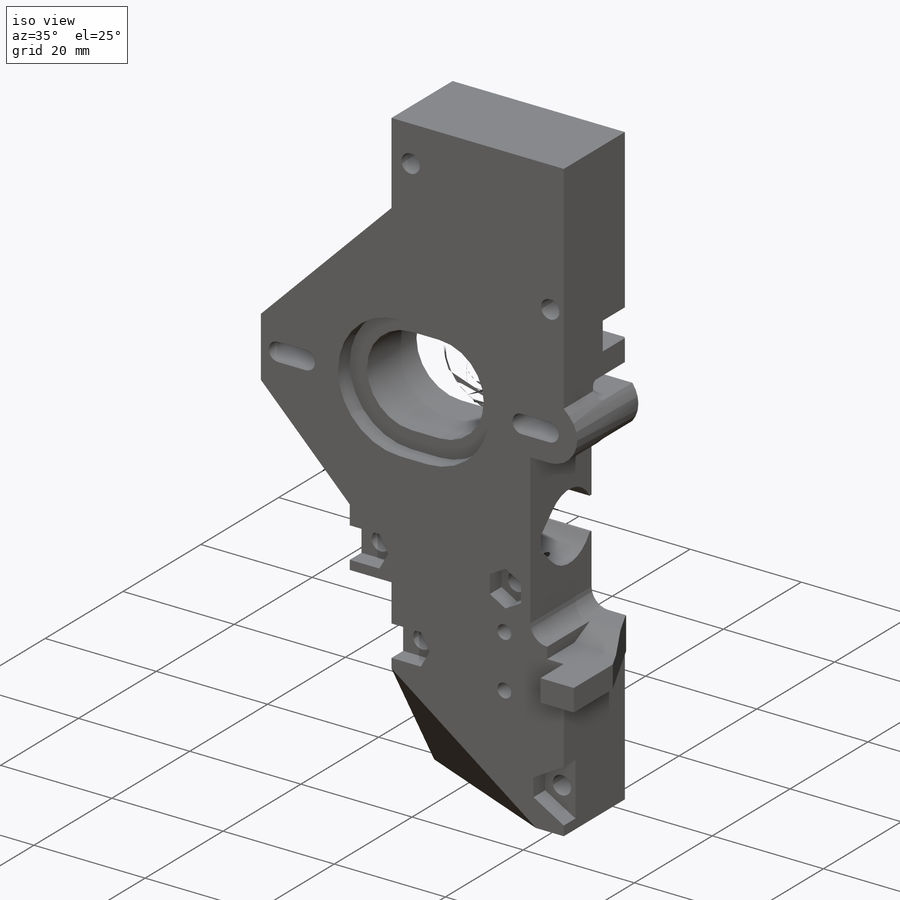
[diagram: iso view]
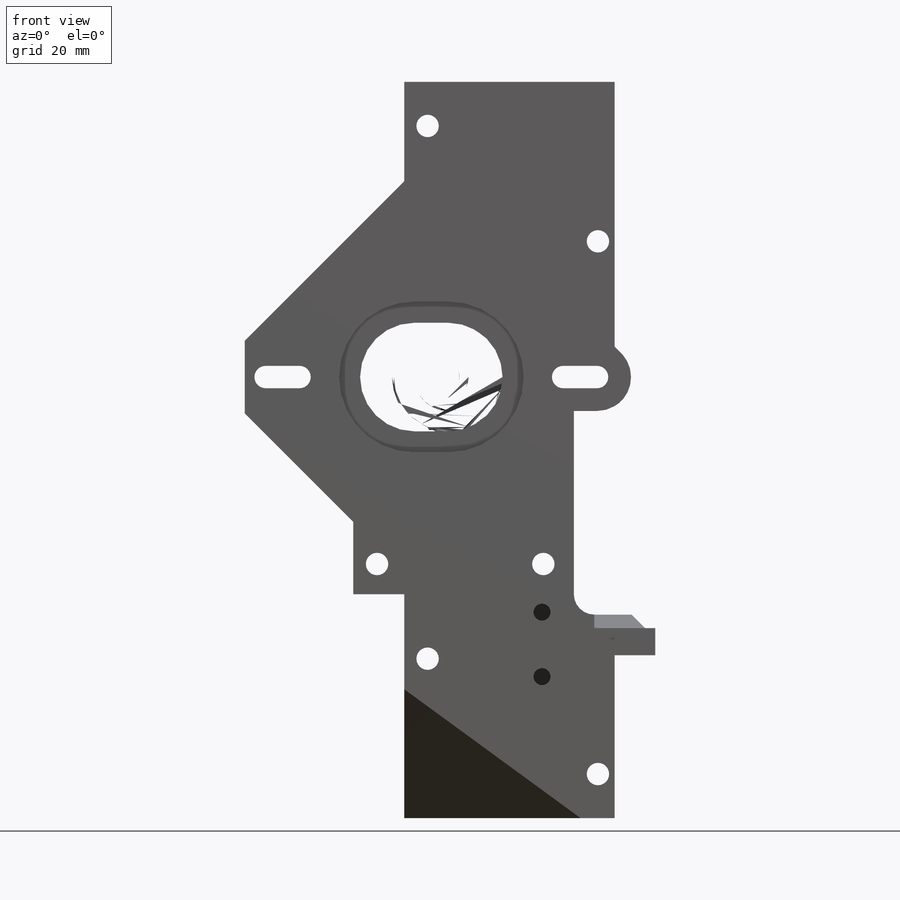
[diagram: front view]
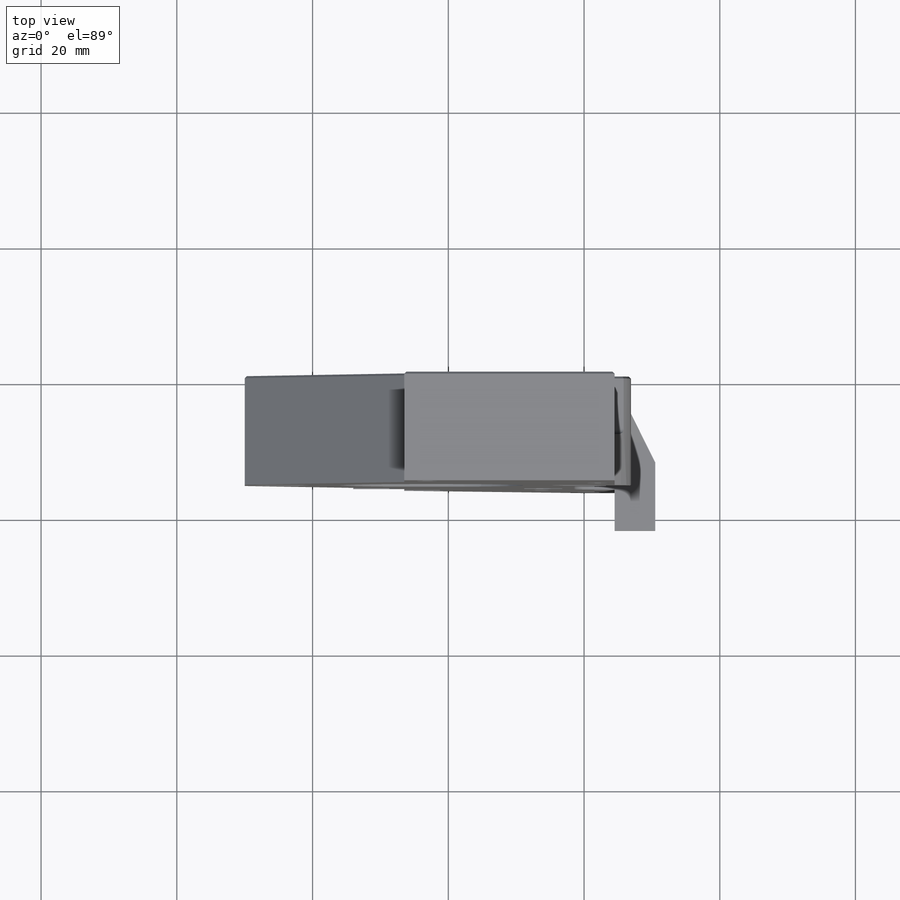
[diagram: top view]
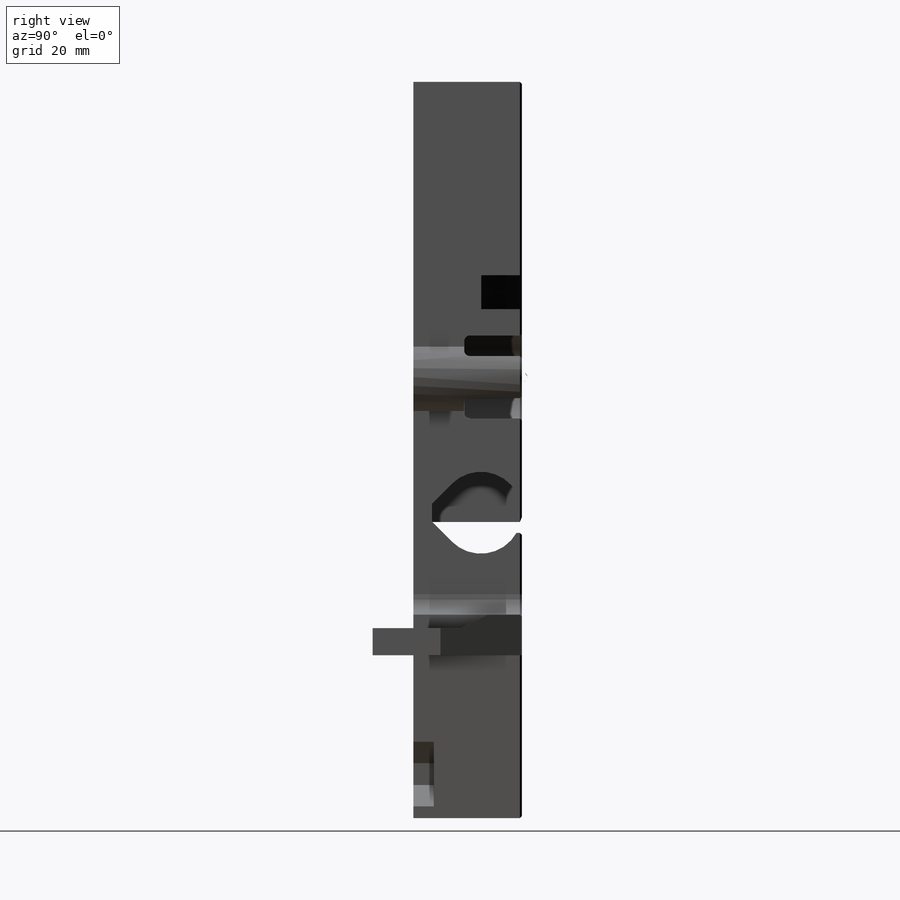
[diagram: right view]
SOLIDWORKS PART (.sldprt)
format: sldprt  version: not decoded by parser v0  size: 901,120 bytes
history: native  units: mm
features: sketch x23, cut_extrude x21, chamfer x6, extrude x2, material x1, plane x1, fillet x1 (+13 scaffold rows collapsed)
feature tree (68):
  scaffold x13  (default folders/planes/origin — collapsed)
  material  "Custom Plastic"
  sketch  "Sketch1"  dims[c1.D1=42.0mm c1.D2=31.0mm c1.D3=3.1mm c1.D4=11.0mm c1.D12=16.0mm c1.D7=10.0mm c1.D17=3.1mm c1.D18=3.1mm c1.D22=3.1mm c1.D29=3.1mm c1.D37=3.3mm c1.D38=3.3mm c1.D39=3.3mm c1.D40=3.3mm c1.D41=3.3mm c1.D42=3.3mm c1.D43=3.3mm c1.D44=3.3mm c2.D4=4.0mm c2.D7=4.0mm c2.D11=4.0mm c2.D17=4.0mm c2.D8=4.0mm c3.D17=4.0mm c3.D9=4.0mm c3.D5=7.5mm c3.D6=12.5mm c3.D10=6.0mm c3.D7=250.0mm c3.D11=10.0mm c3.D13=15.0mm c3.D14=15.0mm c3.D15=1.5mm c4.D13=35.0mm c4.D16=15.0mm c4.D5=16.5mm c4.D6=23.5mm c4.D8=20.0mm c4.D10=21.0mm c4.D11=~34.540694mm c4.D9=29.0mm c5.D11=8.0mm c5.D13=65.0mm c5.D14=43.5mm c5.D10=23.5mm c6.D11=30.0mm c6.D16=9.5mm c6.D17=9.0mm c6.D18=8.0mm c6.D5=9.0mm c6.D6=30.0mm c6.D8=20.0mm c7.D6=31.0mm c7.D9=15.0mm c7.D15=25.0mm c7.D8=24.5mm c7.D20=11.5mm c7.D21=5.0mm c7.D23=12.0mm c7.D24=12.5mm c7.D25=11.0mm c7.D26=6.0mm c7.D27=12.0mm c7.D28=20.0mm c7.D30=4.5mm c7.D31=15.0mm c7.D32=12.0mm c7.D33=6.0mm c7.D34=7.5mm c7.D35=6.0mm c7.D36=4.0mm c7.D39=0.1mm c7.D5=19.0mm c7.D10=11.0mm c7.D19=11.0mm]
  extrude  "Boss-Extrude1"  Depth=16mm
  sketch  "Sketch2"  dims[c1.D1=12.05mm c1.D3=12.0mm c1.D2=6.05mm c2.D3=20.0mm c2.D4=1.2mm]
  cut_extrude  "Cut-Extrude1"  Depth=7.5mm
  sketch  "Sketch3"  dims[c1.D1=12.2mm c1.D3=12.0mm c1.D2=4.0mm c2.D3=20.5mm]
  cut_extrude  "Cut-Extrude4"  [1 undecoded]
  sketch  "Sketch7"  dims[c1.D2=1.5mm c1.D1=5.5mm c2.D2=3.0mm c2.D3=6.0mm c2.D1=4.6mm c3.D3=7.0mm]
  cut_extrude  "Cut-Extrude12"  [1 undecoded]
  sketch  "Sketch4"  dims[c1.D1=20.25mm c1.D2=23.0mm c1.D3=29.0mm c2.D1=23.0mm]
  cut_extrude  "Cut-Extrude6"  Depth=16mm
  sketch  "Sketch5"  dims[D1=21.0mm]
  cut_extrude  "Cut-Extrude7"  Depth=30mm
  sketch  "Sketch6"  dims[D1=15.0mm]
  cut_extrude  "Cut-Extrude11"  Depth=30mm
  sketch  "Sketch9"  dims[D1=5.8mm]
  cut_extrude  "Cut-Extrude14"  Depth=5.3mm
  sketch  "Sketch10"  dims[D1=12.2mm]
  cut_extrude  "Cut-Extrude15"  Depth=8mm
  sketch  "Sketch12"  dims[D1=3.1mm]
  cut_extrude  "Cut-Extrude17"  [1 undecoded]
  sketch  "Sketch13"  dims[D1=6.3mm]
  cut_extrude  "Cut-Extrude18"  Depth=5mm
  sketch  "Sketch15"  dims[c1.D1=6.0mm c1.D2=4.0mm c1.D3=8.0mm c1.D4=8.0mm c2.D1=5.0mm c2.D2=15.0mm]
  cut_extrude  "Cut-Extrude20"  Depth=6mm
  chamfer  "Chamfer1"  Distance=8mm Angle=45deg
  sketch  "Sketch16"  dims[D1=3.1mm D2=4.0mm D3=~4.65223mm]
  cut_extrude  "Cut-Extrude21"  [1 undecoded]
  sketch  "Sketch17"
  cut_extrude  "Cut-Extrude22"  [1 undecoded]
  sketch  "Sketch18"  dims[D1=6.0mm]
  cut_extrude  "Cut-Extrude23"  [1 undecoded]
  chamfer  "Chamfer3"  Distance=1mm Angle=45deg
  sketch  "Sketch19"  dims[D1=22.2mm]
  cut_extrude  "Cut-Extrude24"  Depth=3mm
  sketch  "Sketch21"  dims[D1=5.6mm D2=0.2mm]
  cut_extrude  "Cut-Extrude26"  Depth=3mm
  chamfer  "Chamfer4"  Distance=6mm
  chamfer  "Chamfer5"  Distance=19mm
  sketch  "Sketch22"  dims[D2=1.65mm D1=5.0mm]
  cut_extrude  "Cut-Extrude27"  [1 undecoded]
  sketch  "Sketch23"
  cut_extrude  "Cut-Extrude28"  [1 undecoded]
  sketch  "Sketch24"  dims[D1=6.0mm]
  extrude  "Boss-Extrude2"  [1 undecoded]
  plane  "Plane1"
  sketch  "Sketch25"  dims[D1=0.8mm]
  cut_extrude  "Cut-Extrude29"  [1 undecoded]
  fillet  "Fillet1"  Radius=3mm
  sketch  "Sketch26"  dims[D1=13.0mm]
  cut_extrude  "Cut-Extrude30"  Depth=2mm
  chamfer  "Chamfer6"  Distance=4mm
  chamfer  "Chamfer7"  Distance=0.3mm Angle=45deg
  sketch  "Sketch27"  dims[D2=2.5mm D1=9.5mm D3=7.7mm D4=5.5mm]
  cut_extrude  "Cut-Extrude31"  Depth=10mm
decode coverage: 41 of 53 modeling features carry decoded parameters
note: ~ marks probable driven/reference dimensions
note: 10 parameter values undecoded
summary: no parameter record found for 10 features
note: suppression state not decoded; provenance and decode notes live in map.json
